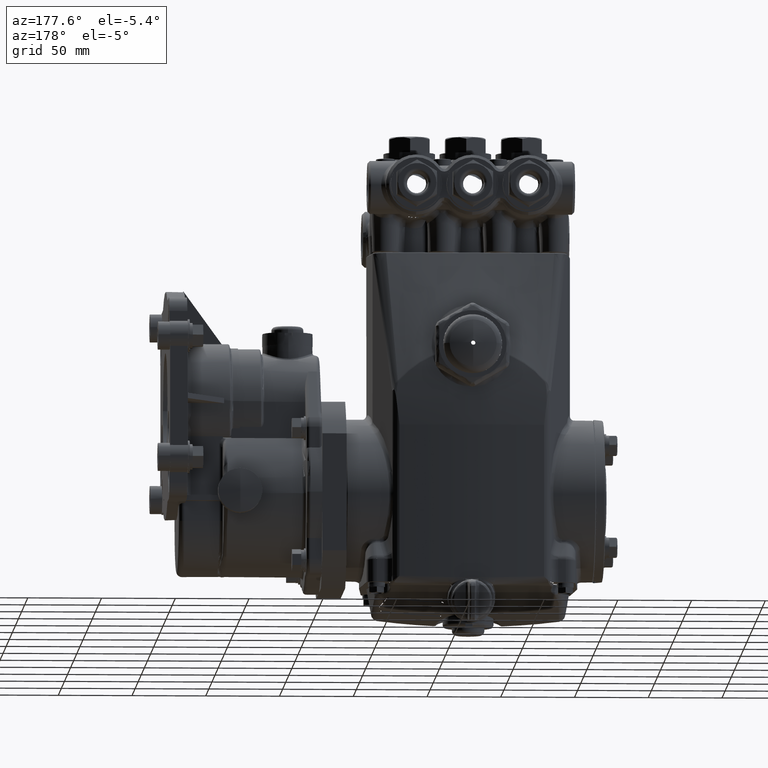
[diagram: clean part render]
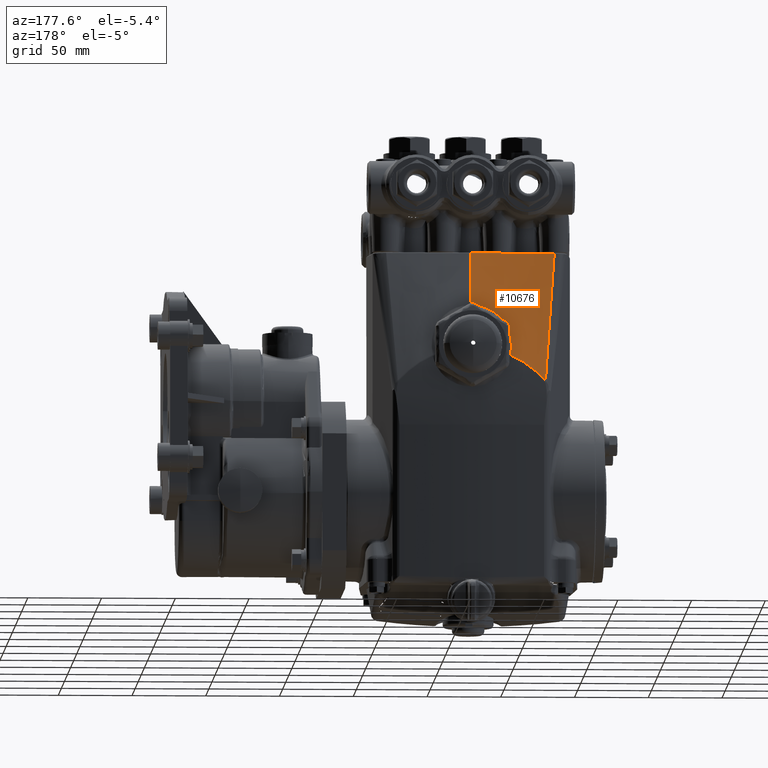
[diagram: same view with one face highlighted and labeled with its STEP entity id]
A machine part, auxiliary view. The second image highlights one B-rep face of the part: STEP entity #10676.
In plain terms, the highlighted face is a freeform B-spline surface patch.
Its self-contained STEP definition (entity closure, byte-faithful):
#264 = CARTESIAN_POINT ( 'NONE',  ( 4.568839345937436569, 2.449888641113228793, 1.555216356707070258 ) ) ;
#656 = CARTESIAN_POINT ( 'NONE',  ( 3.716002651330828410, 1.790681753928190068, 3.411238071023189100 ) ) ;
#1279 = B_SPLINE_CURVE_WITH_KNOTS ( 'NONE', 3,
 ( #5766, #91578, #3625, #16396 ),
 .UNSPECIFIED., .F., .F.,
 ( 4, 4 ),
 ( 0.4332994890773434471, 0.4362303611599745445 ),
 .UNSPECIFIED. ) ;
#1316 = CARTESIAN_POINT ( 'NONE',  ( 3.440105073327338836, 1.787078405697960948, 3.422867512728319905 ) ) ;
#2049 = CARTESIAN_POINT ( 'NONE',  ( 3.163452977482034356, 1.791049278839745851, 3.408366182224901841 ) ) ;
#2268 = CARTESIAN_POINT ( 'NONE',  ( 4.275651042268523661, 2.758416019870649105, 0.5514926440436336286 ) ) ;
#3410 = CARTESIAN_POINT ( 'NONE',  ( 3.129646540871417582, 1.787078405697960948, 3.422867512728319905 ) ) ;
#3625 = CARTESIAN_POINT ( 'NONE',  ( 3.714240927900966938, 1.790679931502712874, 3.411215370576647921 ) ) ;
#4117 = CARTESIAN_POINT ( 'NONE',  ( 4.603772768760730827, 2.440652969928008176, 1.590842938176561416 ) ) ;
#4845 = CARTESIAN_POINT ( 'NONE',  ( 5.201812490376110709, 2.115101253585257801, 2.545606979869772246 ) ) ;
#4873 = CARTESIAN_POINT ( 'NONE',  ( 3.596069267899270283, 1.790928629827926111, 3.410103560479762042 ) ) ;
#5557 = CARTESIAN_POINT ( 'NONE',  ( 7.062121285313092578, 1.787078405697960948, 3.422867512728319905 ) ) ;
#5766 = CARTESIAN_POINT ( 'NONE',  ( 3.710748084669070135, 1.790705669852732163, 3.411199530416310743 ) ) ;
#6255 = CARTESIAN_POINT ( 'NONE',  ( 4.808373274708364953, 2.769279718479225050, 0.7324618023926923183 ) ) ;
#6284 = CARTESIAN_POINT ( 'NONE',  ( 3.332013978633688644, 1.791099905993377650, 3.408734643689896426 ) ) ;
#6976 = CARTESIAN_POINT ( 'NONE',  ( 5.816443604847196802, 2.114912251971619028, 2.539661997610696886 ) ) ;
#7003 = CARTESIAN_POINT ( 'NONE',  ( 3.335776833790049967, 1.791100812737728365, 3.408743560618853863 ) ) ;
#7691 = CARTESIAN_POINT ( 'NONE',  ( 3.509184831499394086, 1.791006292799003363, 3.409598634277592577 ) ) ;
#8415 = CARTESIAN_POINT ( 'NONE',  ( 3.302641114568785063, 2.270241788216232681, 1.648411326024715517 ) ) ;
#9530 = CARTESIAN_POINT ( 'NONE',  ( 5.361316751011654169, 2.330671950557490657, 1.972552864482944424 ) ) ;
#9737 = CARTESIAN_POINT ( 'NONE',  ( 7.309856188462487303, 2.427368756985346820, 1.178416856833195414 ) ) ;
#9886 = ORIENTED_EDGE ( 'NONE', *, *, #40538, .T. ) ;
#10211 = CARTESIAN_POINT ( 'NONE',  ( 5.178729092269390932, 2.337861007974454175, 1.947456954753919556 ) ) ;
#10299 = VERTEX_POINT ( 'NONE', #13518 ) ;
#10676 = ADVANCED_FACE ( 'NONE', ( #111157 ), #115394, .F. ) ;
#10829 = CARTESIAN_POINT ( 'NONE',  ( 5.406342445548177444, 1.791740634395892817, 3.410428526282357264 ) ) ;
#10913 = CARTESIAN_POINT ( 'NONE',  ( 4.716065450520924962, 2.404715928167131977, 1.712774507900029830 ) ) ;
#11482 = B_SPLINE_CURVE_WITH_KNOTS ( 'NONE', 3,
 ( #2049, #23337, #66589, #109787, #55927, #125348, #6284, #80753, #59450, #115421, #81479, #7003, #103403, #135999, #18338, #114013, #137368, #104806, #28951, #92811, #38902, #60145, #48114, #26136, #61571, #58763, #7691, #69385, #94177, #4873, #82176, #40260 ),
 .UNSPECIFIED., .F., .F.,
 ( 4, 2, 1, 1, 1, 2, 2, 1, 1, 1, 2, 2, 1, 1, 1, 2, 2, 1, 1, 1, 2, 4 ),
 ( 0.000000000000000000, 0.1083248722690201005, 0.1218654813026480432, 0.1235580574318520114, 0.1244043454964536694, 0.1248274895287542069, 0.1250390615449044618, 0.1252506335610547306, 0.1286357858194649706, 0.1354060903362854507, 0.1624873084035650117, 0.2166497445381241338, 0.2437309626054030565, 0.2471161148638126304, 0.2488086909930180002, 0.2496549790576206851, 0.2500781230899219998, 0.2505012671222233700, 0.2572715716390795992, 0.2708121806727922798, 0.3249746168076426689, 0.4332994890773434471 ),
 .UNSPECIFIED. ) ;
#11624 = CARTESIAN_POINT ( 'NONE',  ( 4.897942193790418841, 2.368319625165576259, 1.840571420914339784 ) ) ;
#11827 = VERTEX_POINT ( 'NONE', #15859 ) ;
#11988 = CARTESIAN_POINT ( 'NONE',  ( 3.506600886890724134, 2.427310732652407044, 1.176738797780326973 ) ) ;
#12159 = CARTESIAN_POINT ( 'NONE',  ( 4.364809228303684563, 2.759669547445553928, 0.5906368512598695331 ) ) ;
#13023 = ORIENTED_EDGE ( 'NONE', *, *, #85202, .T. ) ;
#13518 = CARTESIAN_POINT ( 'NONE',  ( 3.163452977482034356, 1.791049278839745851, 3.408366182224901841 ) ) ;
#14044 = CARTESIAN_POINT ( 'NONE',  ( 3.192770165720410169, 2.420632933919300900, 0.9723101490001545555 ) ) ;
#14746 = CARTESIAN_POINT ( 'NONE',  ( 6.749519445334315471, 2.759544290169045233, 0.4283680963102435291 ) ) ;
#15459 = CARTESIAN_POINT ( 'NONE',  ( 4.785425380636332271, 1.787078405697960948, 3.422867512728321238 ) ) ;
#15859 = CARTESIAN_POINT ( 'NONE',  ( 3.710748084669070135, 1.790705669852732163, 3.411199530416310743 ) ) ;
#16177 = CARTESIAN_POINT ( 'NONE',  ( 6.784729273670370375, 2.435388995345350249, 1.426534568449601803 ) ) ;
#16396 = CARTESIAN_POINT ( 'NONE',  ( 3.716002651330828410, 1.790681753928190068, 3.411238071023189100 ) ) ;
#16432 = VERTEX_POINT ( 'NONE', #21488 ) ;
#16880 = CARTESIAN_POINT ( 'NONE',  ( 5.812600054204987821, 2.442746098245276887, 1.656456482493073867 ) ) ;
#17590 = CARTESIAN_POINT ( 'NONE',  ( 6.502485521813737179, 2.438290663853368123, 1.516988686467461545 ) ) ;
#18314 = CARTESIAN_POINT ( 'NONE',  ( 7.484866735466130905, 2.737410198029972541, -0.2529685328639298958 ) ) ;
#18338 = CARTESIAN_POINT ( 'NONE',  ( 3.372824285920122733, 1.791092777494347699, 3.408889898185217593 ) ) ;
#18382 = CARTESIAN_POINT ( 'NONE',  ( 3.376949244124036298, 2.539685887306500245, 0.6440155192463005163 ) ) ;
#19064 = CARTESIAN_POINT ( 'NONE',  ( 3.304254737291134614, 2.276366982923819116, 1.625686866708458300 ) ) ;
#19458 = CARTESIAN_POINT ( 'NONE',  ( 4.912584229760639687, 2.366043398605740311, 1.848571045114733691 ) ) ;
#19663 = CARTESIAN_POINT ( 'NONE',  ( 7.226751285066569608, 2.747513932629040756, 0.05619152888563318238 ) ) ;
#20161 = CARTESIAN_POINT ( 'NONE',  ( 4.929694622103115265, 2.363473352733572508, 1.857601778753926069 ) ) ;
#20382 = CARTESIAN_POINT ( 'NONE',  ( 7.364018774554834224, 2.742761366563483794, -0.08984691952600472320 ) ) ;
#20451 = CARTESIAN_POINT ( 'NONE',  ( 3.303124866723629260, 2.272079360861193109, 1.641594436509838717 ) ) ;
#20866 = CARTESIAN_POINT ( 'NONE',  ( 4.358597799570402387, 2.599739310094209888, 1.057990197427377543 ) ) ;
#21413 = CARTESIAN_POINT ( 'NONE',  ( 5.406342445548175668, 2.011978258358528837, 2.822826836136731021 ) ) ;
#21488 = CARTESIAN_POINT ( 'NONE',  ( 5.406342445548177444, 1.791740634395892817, 3.410428526282357264 ) ) ;
#21554 = CARTESIAN_POINT ( 'NONE',  ( 5.228041862047626331, 2.335019154091234395, 1.957389776745129595 ) ) ;
#21674 = VERTEX_POINT ( 'NONE', #133308 ) ;
#21916 = CARTESIAN_POINT ( 'NONE',  ( 3.515266680951680822, 2.107953028151015484, 2.323161656521669283 ) ) ;
#22136 = EDGE_LOOP ( 'NONE', ( #121171, #115731, #90626, #48998, #41075, #9886, #13023 ) ) ;
#22577 = B_SPLINE_CURVE_WITH_KNOTS ( 'NONE', 3,
 ( #62704, #9530, #41427, #75476, #21554, #84719, #10211, #95352, #64804, #137843, #128572, #64113, #96042, #108018, #30772, #20161, #19458, #53455, #74053, #11624, #74783, #117250, #52777, #63431, #10913, #30108, #139905, #54174, #97439, #139235, #52079, #138542, #264, #40749, #43528, #42110, #31488, #86822, #32891, #84031, #108740, #76178, #94642, #127202, #73366, #117964, #20866, #44897, #67590, #88882, #66219, #110808, #22956, #122136 ),
 .UNSPECIFIED., .F., .F.,
 ( 4, 2, 2, 1, 2, 2, 2, 2, 1, 1, 2, 2, 2, 1, 1, 1, 2, 2, 2, 1, 1, 1, 2, 2, 2, 2, 1, 1, 1, 1, 1, 2, 2, 4 ),
 ( 0.000000000000000000, 0.06249999999997524203, 0.09374999999996212752, 0.1093749999999555772, 0.1171874999999515388, 0.1249999999999475003, 0.1874999999999258926, 0.2187499999999151512, 0.2343749999999098776, 0.2421874999999079070, 0.2460937499999072964, 0.2499999999999066302, 0.3124999999999000244, 0.3437499999998969713, 0.3593749999998953615, 0.3671874999998948064, 0.3710937499998949174, 0.3749999999998950284, 0.4374999999998999689, 0.4687499999999024669, 0.4843749999999033551, 0.4921874999999039102, 0.4960937499999045208, 0.4999999999999051870, 0.6249999999999262812, 0.6874999999999366063, 0.7187499999999416023, 0.7343749999999440448, 0.7421874999999452660, 0.7460937499999459321, 0.7480468749999462652, 0.7490234374999464873, 0.7499999999999468203, 1.000000000000000000 ),
 .UNSPECIFIED. ) ;
#22640 = CARTESIAN_POINT ( 'NONE',  ( 3.388246135760445643, 2.740085959403007809, -0.1714023273999353281 ) ) ;
#22874 = CARTESIAN_POINT ( 'NONE',  ( 4.019712795144626760, 2.753812443242206864, 0.4093397183978750853 ) ) ;
#22956 = CARTESIAN_POINT ( 'NONE',  ( 4.337244896529329985, 2.701350136737206142, 0.7490375031551913532 ) ) ;
#23309 = CARTESIAN_POINT ( 'NONE',  ( 3.750563605783260535, 1.787078405697960948, 3.422867512728322126 ) ) ;
#23337 = CARTESIAN_POINT ( 'NONE',  ( 3.164865187899555732, 1.791062442357979512, 3.408315237045180357 ) ) ;
#24954 = CARTESIAN_POINT ( 'NONE',  ( 3.500882750404638699, 2.739643619506097583, -0.02159401880404204777 ) ) ;
#25405 = CARTESIAN_POINT ( 'NONE',  ( 3.957535960753874260, 1.787078405697960948, 3.422867512728322126 ) ) ;
#26108 = CARTESIAN_POINT ( 'NONE',  ( 6.201173503257933817, 2.767389257462760099, 0.6732308997011664520 ) ) ;
#26136 = CARTESIAN_POINT ( 'NONE',  ( 3.504497675605437124, 1.791001373973733157, 3.409601711726141904 ) ) ;
#26829 = CARTESIAN_POINT ( 'NONE',  ( 6.441204220401248293, 1.787078405697960948, 3.422867512728319905 ) ) ;
#27539 = CARTESIAN_POINT ( 'NONE',  ( 4.996951698251432816, 2.114851525594670711, 2.537765266491111671 ) ) ;
#28228 = CARTESIAN_POINT ( 'NONE',  ( 6.223212411373067354, 2.113848689619560961, 2.506321975052602014 ) ) ;
#28301 = CARTESIAN_POINT ( 'NONE',  ( 3.163452977482034356, 1.791049278839745851, 3.408366182224901841 ) ) ;
#28951 = CARTESIAN_POINT ( 'NONE',  ( 3.485191203497467249, 1.790980987809503988, 3.409614828275156828 ) ) ;
#30108 = CARTESIAN_POINT ( 'NONE',  ( 4.702017996503099262, 2.408313176686436297, 1.700170366437301572 ) ) ;
#30313 = CARTESIAN_POINT ( 'NONE',  ( 7.470358633111534807, 2.424200379608309142, 1.081057891225436274 ) ) ;
#30772 = CARTESIAN_POINT ( 'NONE',  ( 4.944511190856553995, 2.361372784814331993, 1.864980994772519107 ) ) ;
#31064 = CARTESIAN_POINT ( 'NONE',  ( 3.437059044214606285, 2.737143240310925929, -0.09553503338174852699 ) ) ;
#31488 = CARTESIAN_POINT ( 'NONE',  ( 4.529963360847642839, 2.465984295972421414, 1.499700748680873996 ) ) ;
#32891 = CARTESIAN_POINT ( 'NONE',  ( 4.482706845167859555, 2.486976803298885930, 1.427547133295968163 ) ) ;
#33247 = CARTESIAN_POINT ( 'NONE',  ( 3.026160363386110941, 1.787078405697960948, 3.422867512728319905 ) ) ;
#33440 = CARTESIAN_POINT ( 'NONE',  ( 5.406342445548177444, 1.791740634395892817, 3.410428526282357264 ) ) ;
#33484 = CARTESIAN_POINT ( 'NONE',  ( 4.364809228303684563, 2.759669547445553928, 0.5906368512598695331 ) ) ;
#33947 = CARTESIAN_POINT ( 'NONE',  ( 3.848052989903516075, 2.433031539269019383, 1.353271619369869949 ) ) ;
#34099 = EDGE_CURVE ( 'NONE', #21674, #118002, #22577, .T. ) ;
#36022 = CARTESIAN_POINT ( 'NONE',  ( 4.333802981050476788, 2.763934404230177666, 0.5652211934800480675 ) ) ;
#36729 = CARTESIAN_POINT ( 'NONE',  ( 4.390121991827247605, 2.113129831707881490, 2.483837515727329137 ) ) ;
#37032 = VERTEX_POINT ( 'NONE', #656 ) ;
#37437 = CARTESIAN_POINT ( 'NONE',  ( 4.578453025665718101, 1.787078405697960948, 3.422867512728322126 ) ) ;
#38150 = CARTESIAN_POINT ( 'NONE',  ( 5.199370090577561498, 1.787078405697960948, 3.422867512728319905 ) ) ;
#38875 = CARTESIAN_POINT ( 'NONE',  ( 4.800723976684354355, 2.441879280885470571, 1.629263705837901810 ) ) ;
#38902 = CARTESIAN_POINT ( 'NONE',  ( 3.502516218952967719, 1.790998955356223776, 3.409604161017881552 ) ) ;
#38948 = CARTESIAN_POINT ( 'NONE',  ( 3.255275241985301271, 2.092444941333818420, 2.305330500798890903 ) ) ;
#39239 = EDGE_CURVE ( 'NONE', #11827, #37032, #1279, .T. ) ;
#39626 = CARTESIAN_POINT ( 'NONE',  ( 3.371645860259508964, 2.521261200359478760, 0.7129664264870170243 ) ) ;
#40260 = CARTESIAN_POINT ( 'NONE',  ( 3.710748084669070135, 1.790705669852732163, 3.411199530416310743 ) ) ;
#40305 = CARTESIAN_POINT ( 'NONE',  ( 3.368988079296226790, 2.511972273553423118, 0.7477207590468666343 ) ) ;
#40538 = EDGE_CURVE ( 'NONE', #55746, #10299, #53261, .T. ) ;
#40749 = CARTESIAN_POINT ( 'NONE',  ( 4.547536082355096099, 2.458466601679388575, 1.525589018099236194 ) ) ;
#40953 = CARTESIAN_POINT ( 'NONE',  ( 7.392961091858403222, 2.107223581341653773, 2.300642184780757660 ) ) ;
#41075 = ORIENTED_EDGE ( 'NONE', *, *, #76308, .T. ) ;
#41427 = CARTESIAN_POINT ( 'NONE',  ( 5.316578642952219269, 2.331515132374050392, 1.969619981399725051 ) ) ;
#41636 = CARTESIAN_POINT ( 'NONE',  ( 7.754962715285743435, 2.103855669808631035, 2.197588830864236176 ) ) ;
#41708 = CARTESIAN_POINT ( 'NONE',  ( 3.425765896410677414, 2.701780978065771777, 0.03682541455667512342 ) ) ;
#42110 = CARTESIAN_POINT ( 'NONE',  ( 4.532852313733859440, 2.464721751590023491, 1.504043866850136801 ) ) ;
#43030 = B_SPLINE_CURVE_WITH_KNOTS ( 'NONE', 3,
 ( #33484, #2268, #119963, #22874, #55469, #88797, #131954, #98711, #24954, #70316 ),
 .UNSPECIFIED., .F., .F.,
 ( 4, 2, 2, 2, 4 ),
 ( 0.004531225126507739884, 0.01195000812040868457, 0.01936879111430962752, 0.02678757410821057394, 0.03420635710211152036 ),
 .UNSPECIFIED. ) ;
#43458 = CARTESIAN_POINT ( 'NONE',  ( 3.716002651330828410, 1.790681753928190068, 3.411238071023189100 ) ) ;
#43528 = CARTESIAN_POINT ( 'NONE',  ( 4.537208859961648244, 2.462833508068187793, 1.510542098895020002 ) ) ;
#44897 = CARTESIAN_POINT ( 'NONE',  ( 4.357892068716213707, 2.601124965185865889, 1.053645285177550850 ) ) ;
#44972 = EDGE_CURVE ( 'NONE', #37032, #16432, #54236, .T. ) ;
#46647 = CARTESIAN_POINT ( 'NONE',  ( 3.591591882415070103, 2.747426896129629537, 0.05367444030633071461 ) ) ;
#47376 = CARTESIAN_POINT ( 'NONE',  ( 5.820287155489404896, 1.787078405697960948, 3.422867512728319905 ) ) ;
#48086 = CARTESIAN_POINT ( 'NONE',  ( 6.389597028753447816, 2.765175464097854086, 0.6039926335561150994 ) ) ;
#48114 = CARTESIAN_POINT ( 'NONE',  ( 3.504248794091676000, 1.791001063697827078, 3.409602041256012406 ) ) ;
#48780 = CARTESIAN_POINT ( 'NONE',  ( 5.204254890174660808, 2.443124101472554877, 1.668346447011224809 ) ) ;
#48998 = ORIENTED_EDGE ( 'NONE', *, *, #34099, .T. ) ;
#49496 = CARTESIAN_POINT ( 'NONE',  ( 4.311866818436916660, 2.438315738052772019, 1.517769966562806605 ) ) ;
#50199 = CARTESIAN_POINT ( 'NONE',  ( 6.544690397886555822, 1.787078405697960948, 3.422867512728319905 ) ) ;
#50961 = CARTESIAN_POINT ( 'NONE',  ( 3.367087296498519677, 2.505306321394743296, 0.7726579652238688700 ) ) ;
#52079 = CARTESIAN_POINT ( 'NONE',  ( 4.628463024562549322, 2.428985780045473053, 1.627841529820645006 ) ) ;
#52777 = CARTESIAN_POINT ( 'NONE',  ( 4.770018013938558177, 2.392082067454046168, 1.757086340545180869 ) ) ;
#52985 = CARTESIAN_POINT ( 'NONE',  ( 7.890010705195550145, 1.787078405697960948, 3.422867512728319905 ) ) ;
#53055 = CARTESIAN_POINT ( 'NONE',  ( 3.367847773896043506, 2.507974890997002326, 0.7626751344828985868 ) ) ;
#53261 = B_SPLINE_CURVE_WITH_KNOTS ( 'NONE', 3,
 ( #31064, #41708, #85007, #126091, #74351, #127474, #18382, #39626, #40305, #53055, #50961, #83610, #96327, #71526, #105545, #117552, #126792, #19064, #20451, #8415, #62294, #63710, #114746, #38948, #82222, #125396, #28301 ),
 .UNSPECIFIED., .F., .F.,
 ( 4, 2, 2, 1, 1, 1, 2, 2, 1, 1, 1, 1, 1, 1, 2, 2, 2, 4 ),
 ( 0.005641731690138021039, 0.1293381763867670342, 0.1911863987350815308, 0.2221105099092387791, 0.2375725654963174449, 0.2453035932898567639, 0.2491691071866263818, 0.2530346210833959719, 0.3767310657800261309, 0.4385792881283412936, 0.4695033993024988472, 0.4849654548895775408, 0.4926964826831167765, 0.4965619965798862556, 0.4984947535282708841, 0.5004275104766555682, 0.7478203998698982335, 0.9952132892631408989 ),
 .UNSPECIFIED. ) ;
#53455 = CARTESIAN_POINT ( 'NONE',  ( 4.905288851464574051, 2.367170426872930999, 1.844610315324864747 ) ) ;
#54029 = CARTESIAN_POINT ( 'NONE',  ( 5.406342445548178333, 2.330635987626245242, 1.972637197513396501 ) ) ;
#54093 = CARTESIAN_POINT ( 'NONE',  ( 4.842895466514796965, 1.791742061020417331, 3.410427449035266623 ) ) ;
#54174 = CARTESIAN_POINT ( 'NONE',  ( 4.692084660354192138, 2.410923868529682323, 1.691025933354601829 ) ) ;
#54236 = B_SPLINE_CURVE_WITH_KNOTS ( 'NONE', 3,
 ( #43458, #129906, #54093, #10829 ),
 .UNSPECIFIED., .F., .F.,
 ( 4, 4 ),
 ( 0.01406537931565059185, 0.05700002236171951980 ),
 .UNSPECIFIED. ) ;
#55227 = CARTESIAN_POINT ( 'NONE',  ( 3.421609891366377276, 2.107194569175183663, 2.299803155254323439 ) ) ;
#55469 = CARTESIAN_POINT ( 'NONE',  ( 3.938771441050636923, 2.752079895917548313, 0.3559990132883895098 ) ) ;
#55746 = VERTEX_POINT ( 'NONE', #135859 ) ;
#55927 = CARTESIAN_POINT ( 'NONE',  ( 3.315223168787718944, 1.791095833777498925, 3.408694859225464224 ) ) ;
#57306 = CARTESIAN_POINT ( 'NONE',  ( 2.922674185900803856, 1.787078405697960948, 3.422867512728319905 ) ) ;
#58005 = CARTESIAN_POINT ( 'NONE',  ( 5.612155890568107708, 2.115160267269520222, 2.547462482791970739 ) ) ;
#58731 = CARTESIAN_POINT ( 'NONE',  ( 6.967629491705063849, 2.432960102782224521, 1.351054328902197010 ) ) ;
#58763 = CARTESIAN_POINT ( 'NONE',  ( 3.505757239705988404, 1.791002922414821175, 3.409600117936029573 ) ) ;
#59424 = CARTESIAN_POINT ( 'NONE',  ( 6.855148930342477520, 1.787078405697960948, 3.422867512728319905 ) ) ;
#59450 = CARTESIAN_POINT ( 'NONE',  ( 3.333716987679514965, 1.791100320029176185, 3.408738667404311418 ) ) ;
#60119 = CARTESIAN_POINT ( 'NONE',  ( 5.609838070666741672, 2.771323990412639660, 0.7966524229192704087 ) ) ;
#60145 = CARTESIAN_POINT ( 'NONE',  ( 3.503671267116245769, 1.791000352672939888, 3.409602775660948382 ) ) ;
#60837 = CARTESIAN_POINT ( 'NONE',  ( 4.267994493209796403, 1.787078405697960948, 3.422867512728322126 ) ) ;
#61543 = CARTESIAN_POINT ( 'NONE',  ( 7.619914725375937614, 2.420632933919301788, 0.9723101490001528902 ) ) ;
#61571 = CARTESIAN_POINT ( 'NONE',  ( 3.504629878616902339, 1.791001538297543716, 3.409601538350221617 ) ) ;
#62294 = CARTESIAN_POINT ( 'NONE',  ( 3.302318719437938199, 2.269016735263220230, 1.652955776578103775 ) ) ;
#62704 = CARTESIAN_POINT ( 'NONE',  ( 5.406342445548178333, 2.330635987626245242, 1.972637197513396501 ) ) ;
#62916 = CARTESIAN_POINT ( 'NONE',  ( 7.683038350224935975, 1.787078405697960948, 3.422867512728319905 ) ) ;
#63431 = CARTESIAN_POINT ( 'NONE',  ( 4.744657497119789014, 2.397725116979840365, 1.737282710190248602 ) ) ;
#63710 = CARTESIAN_POINT ( 'NONE',  ( 3.302165848736167586, 2.268435561719349458, 1.655111645586448965 ) ) ;
#64113 = CARTESIAN_POINT ( 'NONE',  ( 5.055772403935346659, 2.347742621559977039, 1.912839520699301854 ) ) ;
#64669 = CARTESIAN_POINT ( 'NONE',  ( 5.406342445548175668, 2.122097103896606107, 2.529026002185307487 ) ) ;
#64804 = CARTESIAN_POINT ( 'NONE',  ( 5.151518104104111373, 2.339738454984398253, 1.940889730172085104 ) ) ;
#65179 = CARTESIAN_POINT ( 'NONE',  ( 3.327818155630213326, 2.737410198029970765, -0.2529685328639287856 ) ) ;
#66219 = CARTESIAN_POINT ( 'NONE',  ( 4.357289208537903136, 2.602331429871303836, 1.049865829384124094 ) ) ;
#66589 = CARTESIAN_POINT ( 'NONE',  ( 3.207737451708152943, 1.791070359276547119, 3.408434563042505250 ) ) ;
#67590 = CARTESIAN_POINT ( 'NONE',  ( 4.357593847662663222, 2.601719615032494826, 1.051782109444171720 ) ) ;
#68659 = CARTESIAN_POINT ( 'NONE',  ( 4.371480670695103043, 1.787078405697960948, 3.422867512728322126 ) ) ;
#69355 = CARTESIAN_POINT ( 'NONE',  ( 4.063822237739470822, 2.759560837020999191, 0.4288849442041187676 ) ) ;
#69385 = CARTESIAN_POINT ( 'NONE',  ( 3.523302847055509890, 1.791012117256877811, 3.409619706420764285 ) ) ;
#70075 = CARTESIAN_POINT ( 'NONE',  ( 3.992964719749073410, 2.111239216138973696, 2.424873323220253951 ) ) ;
#70316 = CARTESIAN_POINT ( 'NONE',  ( 3.437059044214606285, 2.737143240310925929, -0.09553503338174852699 ) ) ;
#70774 = CARTESIAN_POINT ( 'NONE',  ( 5.613314800518790726, 1.787078405697960948, 3.422867512728319905 ) ) ;
#71455 = CARTESIAN_POINT ( 'NONE',  ( 6.424001823185314208, 2.113110758497925179, 2.483242553004252340 ) ) ;
#71526 = CARTESIAN_POINT ( 'NONE',  ( 3.338834950505761956, 2.404966785942307173, 1.147550416816333740 ) ) ;
#72170 = CARTESIAN_POINT ( 'NONE',  ( 7.476065995254320917, 1.787078405697960948, 3.422867512728319905 ) ) ;
#73366 = CARTESIAN_POINT ( 'NONE',  ( 4.363109234575870410, 2.591477455918238526, 1.083988559848505950 ) ) ;
#74053 = CARTESIAN_POINT ( 'NONE',  ( 4.900433633956930102, 2.367927463259518195, 1.841949729245497158 ) ) ;
#74351 = CARTESIAN_POINT ( 'NONE',  ( 3.390485380330745979, 2.585926551551585018, 0.4708781796059387514 ) ) ;
#74783 = CARTESIAN_POINT ( 'NONE',  ( 4.857971381236010799, 2.374667436519600106, 1.818260097214549065 ) ) ;
#75029 = B_SPLINE_CURVE_WITH_KNOTS ( 'NONE', 3,
 ( #33440, #129157, #21413, #64669, #96591, #139775, #54029 ),
 .UNSPECIFIED., .F., .F.,
 ( 4, 3, 4 ),
 ( 0.0003374136303950777760, 0.02424589558524162941, 0.03933821924561142075 ),
 .UNSPECIFIED. ) ;
#75476 = CARTESIAN_POINT ( 'NONE',  ( 5.250097935782139125, 2.333991688688942023, 1.960978060136460588 ) ) ;
#75844 = CARTESIAN_POINT ( 'NONE',  ( 3.665589896200366127, 2.749702273057125002, 0.1237499441083668300 ) ) ;
#76178 = CARTESIAN_POINT ( 'NONE',  ( 4.391992479327752719, 2.553509403396325261, 1.205716185138366869 ) ) ;
#76308 = EDGE_CURVE ( 'NONE', #118002, #55746, #43030, .T. ) ;
#76537 = CARTESIAN_POINT ( 'NONE',  ( 3.345282976517197415, 2.424108077352525203, 1.078440140279159465 ) ) ;
#77238 = CARTESIAN_POINT ( 'NONE',  ( 3.799308297843388083, 2.110054972483490054, 2.388069566049096260 ) ) ;
#77918 = CARTESIAN_POINT ( 'NONE',  ( 3.146855620844222212, 2.104747590266310198, 2.224777566018901531 ) ) ;
#79321 = CARTESIAN_POINT ( 'NONE',  ( 6.523587959850146945, 2.112684534775664424, 2.469928099597891613 ) ) ;
#80011 = CARTESIAN_POINT ( 'NONE',  ( 6.103988030016802568, 2.768328231278490481, 0.7026506247597192889 ) ) ;
#80721 = CARTESIAN_POINT ( 'NONE',  ( 4.793074678660342869, 2.114478843291715648, 2.526065609283111080 ) ) ;
#80753 = CARTESIAN_POINT ( 'NONE',  ( 3.333148684976184661, 1.791100181837119276, 3.408737324972871630 ) ) ;
#81450 = CARTESIAN_POINT ( 'NONE',  ( 5.306535740310168059, 2.443248472871676569, 1.672253506781852694 ) ) ;
#81479 = CARTESIAN_POINT ( 'NONE',  ( 3.334140790538731913, 1.791100422940621106, 3.408739668825548907 ) ) ;
#82145 = CARTESIAN_POINT ( 'NONE',  ( 6.130745687945326594, 1.787078405697960948, 3.422867512728319905 ) ) ;
#82176 = CARTESIAN_POINT ( 'NONE',  ( 3.646392839297067479, 1.790833173415314672, 3.410557847704255963 ) ) ;
#82222 = CARTESIAN_POINT ( 'NONE',  ( 3.209540478805171571, 1.933521160402090322, 2.887967068427898631 ) ) ;
#83610 = CARTESIAN_POINT ( 'NONE',  ( 3.366749900369571336, 2.504121276325705914, 0.7770908792285133870 ) ) ;
#84031 = CARTESIAN_POINT ( 'NONE',  ( 4.446482920713306974, 2.508089248749366895, 1.355810754096854032 ) ) ;
#84719 = CARTESIAN_POINT ( 'NONE',  ( 5.195136840943354706, 2.336863242608819835, 1.950944987455180524 ) ) ;
#85007 = CARTESIAN_POINT ( 'NONE',  ( 3.414172398762327809, 2.664559558400613426, 0.1762982108924971980 ) ) ;
#85202 = EDGE_CURVE ( 'NONE', #10299, #11827, #11482, .T. ) ;
#86822 = CARTESIAN_POINT ( 'NONE',  ( 4.528484727219903583, 2.466636027020183697, 1.497459774331405091 ) ) ;
#88797 = CARTESIAN_POINT ( 'NONE',  ( 3.783770161947676680, 2.748340657535389919, 0.2410250138653012852 ) ) ;
#88882 = CARTESIAN_POINT ( 'NONE',  ( 4.357395974457164201, 2.602116225552224549, 1.050539755332410952 ) ) ;
#90626 = ORIENTED_EDGE ( 'NONE', *, *, #103013, .T. ) ;
#90657 = CARTESIAN_POINT ( 'NONE',  ( 5.302856268062869027, 1.787078405697960948, 3.422867512728319905 ) ) ;
#91369 = CARTESIAN_POINT ( 'NONE',  ( 7.014875388509078213, 2.110019254240092845, 2.386960920815258458 ) ) ;
#91578 = CARTESIAN_POINT ( 'NONE',  ( 3.712489436173074253, 1.790683900430089848, 3.411198373748884460 ) ) ;
#92059 = CARTESIAN_POINT ( 'NONE',  ( 4.616432640308236302, 2.767440252043031901, 0.6748306509006802845 ) ) ;
#92782 = CARTESIAN_POINT ( 'NONE',  ( 4.028393478744272116, 2.435400026579986665, 1.426879133712185999 ) ) ;
#92811 = CARTESIAN_POINT ( 'NONE',  ( 3.499821147252654363, 1.790995868069441999, 3.409606808960697677 ) ) ;
#93479 = CARTESIAN_POINT ( 'NONE',  ( 5.610996980617424690, 2.443242128841079719, 1.672057452855620463 ) ) ;
#94177 = CARTESIAN_POINT ( 'NONE',  ( 3.541612256717591389, 1.790998369682923252, 3.409718627282697589 ) ) ;
#94642 = CARTESIAN_POINT ( 'NONE',  ( 4.376750127710593574, 2.571480220441079823, 1.147695236473000868 ) ) ;
#95352 = CARTESIAN_POINT ( 'NONE',  ( 5.162392704660169862, 2.338972336243560601, 1.943569881125576826 ) ) ;
#96042 = CARTESIAN_POINT ( 'NONE',  ( 4.994501369851438888, 2.354780260264748737, 1.888134314506122013 ) ) ;
#96327 = CARTESIAN_POINT ( 'NONE',  ( 3.355254581859057339, 2.463729901935981736, 0.9281737179420397332 ) ) ;
#96591 = CARTESIAN_POINT ( 'NONE',  ( 5.406342445548175668, 2.191610060056084830, 2.343563065389246969 ) ) ;
#97439 = CARTESIAN_POINT ( 'NONE',  ( 4.690064010642042369, 2.411461533763956666, 1.689142956818714403 ) ) ;
#98711 = CARTESIAN_POINT ( 'NONE',  ( 3.568230111249952152, 2.741976457104261744, 0.04812643574958826165 ) ) ;
#100549 = CARTESIAN_POINT ( 'NONE',  ( 3.267550878302333484, 2.422416774834659225, 1.026687619309482713 ) ) ;
#101258 = CARTESIAN_POINT ( 'NONE',  ( 5.006059623540403791, 2.770397765388091127, 0.7675607740166962012 ) ) ;
#101984 = CARTESIAN_POINT ( 'NONE',  ( 6.406799425969381900, 2.439143111297889632, 1.543617593280183886 ) ) ;
#102673 = CARTESIAN_POINT ( 'NONE',  ( 4.992397735606947329, 1.787078405697960948, 3.422867512728319905 ) ) ;
#103013 = EDGE_CURVE ( 'NONE', #16432, #21674, #75029, .T. ) ;
#103374 = CARTESIAN_POINT ( 'NONE',  ( 4.591112897213224464, 2.113865687812984451, 2.506855225452441882 ) ) ;
#103403 = CARTESIAN_POINT ( 'NONE',  ( 3.340492414540942701, 1.791101645467304104, 3.408755788138209120 ) ) ;
#104098 = CARTESIAN_POINT ( 'NONE',  ( 5.308375476433817575, 2.771333506458534046, 0.7969465038086176456 ) ) ;
#104806 = CARTESIAN_POINT ( 'NONE',  ( 3.471333828210125372, 1.790977570051672796, 3.409586208727853673 ) ) ;
#105545 = CARTESIAN_POINT ( 'NONE',  ( 3.320228266247901239, 2.336387111492450153, 1.402773588255069814 ) ) ;
#108018 = CARTESIAN_POINT ( 'NONE',  ( 4.974344873005680512, 2.357308104418881722, 1.879258048135280745 ) ) ;
#108740 = CARTESIAN_POINT ( 'NONE',  ( 4.404117886630497303, 2.541888035972868387, 1.243789950943422484 ) ) ;
#109787 = CARTESIAN_POINT ( 'NONE',  ( 3.302632169285251162, 1.791092816193795345, 3.408664638662717739 ) ) ;
#110808 = CARTESIAN_POINT ( 'NONE',  ( 4.334237289157302442, 2.649021172046394756, 0.9036885641113162615 ) ) ;
#111157 = FACE_OUTER_BOUND ( 'NONE', #22136, .T. ) ;
#111872 = CARTESIAN_POINT ( 'NONE',  ( 5.304696004186518543, 2.115163439284818203, 2.547560509755086855 ) ) ;
#112579 = CARTESIAN_POINT ( 'NONE',  ( 6.920383594901049484, 2.755900951324356196, 0.3151477369891370062 ) ) ;
#113300 = CARTESIAN_POINT ( 'NONE',  ( 6.819939102006422615, 2.111233700521655265, 2.424701040588960854 ) ) ;
#113988 = CARTESIAN_POINT ( 'NONE',  ( 5.808756503562779727, 2.770579944518934301, 0.7732509673754506263 ) ) ;
#114013 = CARTESIAN_POINT ( 'NONE',  ( 3.409768723669094115, 1.791054175903823653, 3.409139550650034600 ) ) ;
#114674 = CARTESIAN_POINT ( 'NONE',  ( 6.481383083777329190, 2.763896792931071822, 0.5640492733370321421 ) ) ;
#114746 = CARTESIAN_POINT ( 'NONE',  ( 3.278212647032084703, 2.177377331829402074, 1.992873253373491638 ) ) ;
#115394 = B_SPLINE_SURFACE_WITH_KNOTS ( 'NONE', 3, 3, ( 
 ( #65179, #14044, #131715, #57306 ),
 ( #22640, #100549, #77918, #33247 ),
 ( #121073, #76537, #119719, #3410 ),
 ( #46647, #11988, #55227, #133104 ),
 ( #75844, #119021, #21916, #1316 ),
 ( #131030, #33947, #77238, #23309 ),
 ( #69355, #92782, #70075, #25405 ),
 ( #36022, #49496, #124634, #60837 ),
 ( #123191, #134534, #36729, #68659 ),
 ( #92059, #4117, #103374, #37437 ),
 ( #6255, #38875, #80721, #15459 ),
 ( #101258, #135240, #27539, #102673 ),
 ( #122493, #48780, #4845, #38150 ),
 ( #104098, #81450, #111872, #90657 ),
 ( #60119, #93479, #58005, #70774 ),
 ( #113988, #16880, #6976, #47376 ),
 ( #80011, #135971, #133828, #82145 ),
 ( #26108, #125320, #28228, #123907 ),
 ( #48086, #101984, #71455, #26829 ),
 ( #114674, #17590, #79321, #50199 ),
 ( #14746, #16177, #113300, #59424 ),
 ( #112579, #58731, #91369, #5557 ),
 ( #19663, #9737, #40953, #72170 ),
 ( #20382, #30313, #116765, #62916 ),
 ( #18314, #61543, #41636, #52985 ) ),
 .UNSPECIFIED., .F., .F., .F.,
 ( 4, 2, 2, 2, 2, 1, 2, 2, 2, 2, 2, 2, 4 ),
 ( 4, 4 ),
 ( 0.000000000000000000, 0.06249999999999977796, 0.1249999999999997780, 0.2499999999999997780, 0.3124999999999997780, 0.3749999999999997780, 0.4374999999999998890, 0.4999999999999998890, 0.6249999999999998890, 0.6874999999999997780, 0.7499999999999997780, 0.8749999999999998890, 1.000000000000000000 ),
 ( 0.000000000000000000, 1.000000000000000000 ),
 .UNSPECIFIED. ) ;
#115421 = CARTESIAN_POINT ( 'NONE',  ( 3.333948314685870606, 1.791100376383945036, 3.408739213392922185 ) ) ;
#115731 = ORIENTED_EDGE ( 'NONE', *, *, #44972, .T. ) ;
#116765 = CARTESIAN_POINT ( 'NONE',  ( 7.576698491668234503, 2.105639392653134934, 2.251962701976877756 ) ) ;
#117250 = CARTESIAN_POINT ( 'NONE',  ( 4.821878568015281807, 2.381261135685549757, 1.795080488545719222 ) ) ;
#117552 = CARTESIAN_POINT ( 'NONE',  ( 3.311065115193288833, 2.302091392873416353, 1.530199791792952624 ) ) ;
#117964 = CARTESIAN_POINT ( 'NONE',  ( 4.360048812296388299, 2.596975442268170120, 1.066669952633600316 ) ) ;
#118002 = VERTEX_POINT ( 'NONE', #12159 ) ;
#119021 = CARTESIAN_POINT ( 'NONE',  ( 3.590428288576023252, 2.428827650604070243, 1.223455800315017994 ) ) ;
#119719 = CARTESIAN_POINT ( 'NONE',  ( 3.237464758694306610, 2.105593241525243187, 2.250653826503739463 ) ) ;
#119963 = CARTESIAN_POINT ( 'NONE',  ( 4.188748231585535109, 2.756994738914975152, 0.5074015345580432657 ) ) ;
#121073 = CARTESIAN_POINT ( 'NONE',  ( 3.453101194340086444, 2.742622913179807664, -0.09377354594542094968 ) ) ;
#121171 = ORIENTED_EDGE ( 'NONE', *, *, #39239, .T. ) ;
#122136 = CARTESIAN_POINT ( 'NONE',  ( 4.364809228303684563, 2.759669547445553928, 0.5906368512598695331 ) ) ;
#122493 = CARTESIAN_POINT ( 'NONE',  ( 5.206697289973209131, 2.771146949359852396, 0.7910859141526779270 ) ) ;
#123191 = CARTESIAN_POINT ( 'NONE',  ( 4.427404634091536728, 2.765232683727723018, 0.6057775217253416056 ) ) ;
#123907 = CARTESIAN_POINT ( 'NONE',  ( 6.234231865430634123, 1.787078405697960948, 3.422867512728319905 ) ) ;
#124634 = CARTESIAN_POINT ( 'NONE',  ( 4.289930655823356531, 2.112697071875366372, 2.470318739645564143 ) ) ;
#125320 = CARTESIAN_POINT ( 'NONE',  ( 6.212192957315499697, 2.440618973541160752, 1.589776437376884344 ) ) ;
#125348 = CARTESIAN_POINT ( 'NONE',  ( 3.329379623912120056, 1.791099266142108792, 3.408728412466923707 ) ) ;
#125396 = CARTESIAN_POINT ( 'NONE',  ( 3.186745609619340946, 1.859529692943073131, 3.158144174939420346 ) ) ;
#126091 = CARTESIAN_POINT ( 'NONE',  ( 3.396448685316577620, 2.605933991827675378, 0.3959305658752272916 ) ) ;
#126792 = CARTESIAN_POINT ( 'NONE',  ( 3.306518935215337240, 2.284942037676969573, 1.593865762258491969 ) ) ;
#127202 = CARTESIAN_POINT ( 'NONE',  ( 4.369865204444043805, 2.580600318868837562, 1.118457136720941936 ) ) ;
#127474 = CARTESIAN_POINT ( 'NONE',  ( 3.381472585410331799, 2.555216006828026742, 0.5858740241822045780 ) ) ;
#128572 = CARTESIAN_POINT ( 'NONE',  ( 5.097698905859140872, 2.343778877083924517, 1.926749788795479867 ) ) ;
#129157 = CARTESIAN_POINT ( 'NONE',  ( 5.406342445548173892, 1.901859429138006430, 3.116627676204103636 ) ) ;
#129906 = CARTESIAN_POINT ( 'NONE',  ( 4.279449072744637483, 1.791212924468036372, 3.410827001125851243 ) ) ;
#131030 = CARTESIAN_POINT ( 'NONE',  ( 3.896797681963643178, 2.756008106054549156, 0.3184736726906428061 ) ) ;
#131715 = CARTESIAN_POINT ( 'NONE',  ( 3.057722175810607457, 2.103855669808630591, 2.197588830864237064 ) ) ;
#131954 = CARTESIAN_POINT ( 'NONE',  ( 3.709665854566289056, 2.746322606135257249, 0.1794456359315421135 ) ) ;
#133104 = CARTESIAN_POINT ( 'NONE',  ( 3.336618895842031307, 1.787078405697960948, 3.422867512728319905 ) ) ;
#133308 = CARTESIAN_POINT ( 'NONE',  ( 5.406342445548178333, 2.330635987626245242, 1.972637197513396501 ) ) ;
#133828 = CARTESIAN_POINT ( 'NONE',  ( 6.121826468635818586, 2.114161680891470940, 2.516128550072119996 ) ) ;
#134534 = CARTESIAN_POINT ( 'NONE',  ( 4.408763312959392167, 2.439181257717801810, 1.544807518726335260 ) ) ;
#135240 = CARTESIAN_POINT ( 'NONE',  ( 5.001505660895918304, 2.442624645491381141, 1.652663020253903658 ) ) ;
#135859 = CARTESIAN_POINT ( 'NONE',  ( 3.437059044214606285, 2.737143240310925929, -0.09553503338174852699 ) ) ;
#135971 = CARTESIAN_POINT ( 'NONE',  ( 6.112907249326309689, 2.441244956084980711, 1.609389587415919864 ) ) ;
#135999 = CARTESIAN_POINT ( 'NONE',  ( 3.357429278994515709, 1.791101686302577711, 3.408809920665601290 ) ) ;
#137368 = CARTESIAN_POINT ( 'NONE',  ( 3.434387738286436509, 1.790993709837537473, 3.409422188653777219 ) ) ;
#137843 = CARTESIAN_POINT ( 'NONE',  ( 5.146039388828289596, 2.340137865182885690, 1.939492203219293165 ) ) ;
#138542 = CARTESIAN_POINT ( 'NONE',  ( 4.588215035757082561, 2.442802842556098586, 1.579797881303957041 ) ) ;
#139235 = CARTESIAN_POINT ( 'NONE',  ( 4.657290603907503268, 2.420247104042629882, 1.658377684925550488 ) ) ;
#139775 = CARTESIAN_POINT ( 'NONE',  ( 5.406342445548179221, 2.261123022693498186, 2.158100131021166934 ) ) ;
#139905 = CARTESIAN_POINT ( 'NONE',  ( 4.696050898027971598, 2.409876681344873983, 1.694693686881159067 ) ) ;